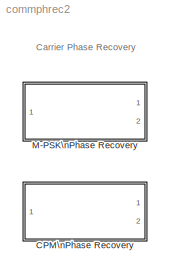
MODEL commphrec2
KIND library
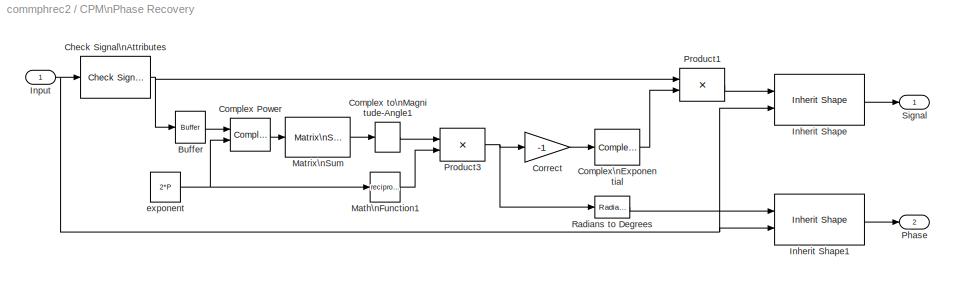
BLOCK [SubSystem] CPM\nPhase Recovery
  EnableExecutionContextPropagation = on
  MaskCallbackString = |
  MaskDescription = Recover the carrier phase using the 2P-Power method.  This non-data-aided, clock-aided feedforward method is suitable for full response CPM signals.\n\nThe parameter P is the denominator of the modulation index (h=K/P) when expressed as a proper fraction. The observation interval parameter must be an integer multiple of the input signal vector length.
  MaskDisplay = disp('CPM\\nPhase Recovery');\nport_label('output',1,'Sig');\nport_label('output',2,'Ph');\n
  MaskEnableString = on,on
  MaskHelp = helpview(commbhelp);
  MaskIconFrame = on
  MaskIconOpaque = on
  MaskIconRotate = none
  MaskIconUnits = autoscale
  MaskInitialization = if ( ~isscalar(P) || (floor(P)~=P) )\n	error('P parameter must be an integer scalar.');\nend\n\nif ( ~isscalar(intPeriod) || (floor(intPeriod)~=intPeriod) )\n	error('The observation interval parameter must be an integer scalar.');\nend\n
  MaskPromptString = P:|Observation interval (symbols):
  MaskSelfModifiable = on
  MaskStyleString = edit,edit
  MaskTabNameString = ,
  MaskToolTipString = on,on
  MaskTunableValueString = on,on
  MaskType = CPM Phase Recovery
  MaskValueString = 2|100
  MaskVarAliasString = ,
  MaskVariables = P=@1;intPeriod=@2;
  MaskVisibilityString = on,on
  MinAlgLoopOccurrences = off
  Ports = [1, 2]
  TreatAsAtomicUnit = off
BLOCK [Reference] CPM\nPhase Recovery/Buffer  REF=dspbuff3/Buffer
  N = intPeriod
  Ports = [1, 1]
  SourceBlock = dspbuff3/Buffer
  SourceType = Buffer
  V = 0
  ic = 0
BLOCK [Reference] CPM\nPhase Recovery/Check Signal\nAttributes  REF=dspsigattribs/Check Signal\nAttributes
  Complexity = Complex
  DatatypeCheckMethod = Ignore
  DatatypeGeneral = Boolean
  Dimensions = 1-D
  DimsCheckMethod = Ignore
  DtypeFixedSpecific = Any fixed-point
  DtypeFloatSpecific = Any floating-point
  DtypeIntSpecific = Any integer
  Frame = Ignore
  Ports = [1, 1]
  SampleMode = Ignore
  ShowPortLabels = on
  SigAttribCheckMethod = Does not match attributes exactly
  SourceBlock = dspsigattribs/Check Signal\nAttributes
  SourceType = Check Signal Attributes
BLOCK [Reference] CPM\nPhase Recovery/Complex Power  REF=commblksprivate/Complex Power
  Ports = [2, 1]
  ShowPortLabels = on
  SourceBlock = commblksprivate/Complex Power
  SourceType = Complex Power
BLOCK [ComplexToMagnitudeAngle] CPM\nPhase Recovery/Complex to\nMagnitude-Angle1
  Output = Angle
  Ports = [1, 1]
BLOCK [Reference] CPM\nPhase Recovery/Complex\nExponential  REF=dspmathops/Complex\nExponential
  Ports = [1, 1]
  ShowPortLabels = on
  SourceBlock = dspmathops/Complex\nExponential
  SourceType = Complex Exponential
BLOCK [Gain] CPM\nPhase Recovery/Correct
  Gain = -1
BLOCK [Reference] CPM\nPhase Recovery/Inherit Shape  REF=commblksprivate/Inherit Shape
  Ports = [2, 1]
  ShowPortLabels = on
  SourceBlock = commblksprivate/Inherit Shape
  SourceType = Inherit Shape
BLOCK [Reference] CPM\nPhase Recovery/Inherit Shape1  REF=commblksprivate/Inherit Shape
  Ports = [2, 1]
  ShowPortLabels = on
  SourceBlock = commblksprivate/Inherit Shape
  SourceType = Inherit Shape
BLOCK [Inport] CPM\nPhase Recovery/Input
  IconDisplay = Port number
  LatchInput = off
BLOCK [Math] CPM\nPhase Recovery/Math\nFunction1
  Operator = reciprocal
  Ports = [1, 1]
BLOCK [Reference] CPM\nPhase Recovery/Matrix\nSum  REF=dspmtrx3/Matrix\nSum
  Dim = Columns
  Ports = [1, 1]
  SourceBlock = dspmtrx3/Matrix\nSum
  SourceType = Matrix Sum
  accumFracLength = 30
  accumMode = Inherit via internal rule
  accumWordLength = 32
  additionalParams = off
  allowOverrides = on
  outputFracLength = 15
  outputMode = Same as input
  outputWordLength = 16
  overflowMode = off
  roundingMode = Floor
BLOCK [Outport] CPM\nPhase Recovery/Phase
  BusOutputAsStruct = off
  IconDisplay = Port number
  Port = 2
BLOCK [Product] CPM\nPhase Recovery/Product1
  InputSameDT = off
  Ports = [2, 1]
  RndMeth = Floor
BLOCK [Product] CPM\nPhase Recovery/Product3
  InputSameDT = off
  Ports = [2, 1]
  RndMeth = Floor
BLOCK [Reference] CPM\nPhase Recovery/Radians to Degrees  REF=simulink_extras/Transformations/Radians\nto Degrees
  Ports = [1, 1]
  ShowPortLabels = on
  SourceBlock = simulink_extras/Transformations/Radians\nto Degrees
  SourceType = RadiansToDegrees
BLOCK [Outport] CPM\nPhase Recovery/Signal
  BusOutputAsStruct = off
  IconDisplay = Port number
BLOCK [Constant] CPM\nPhase Recovery/exponent
  Value = 2*P
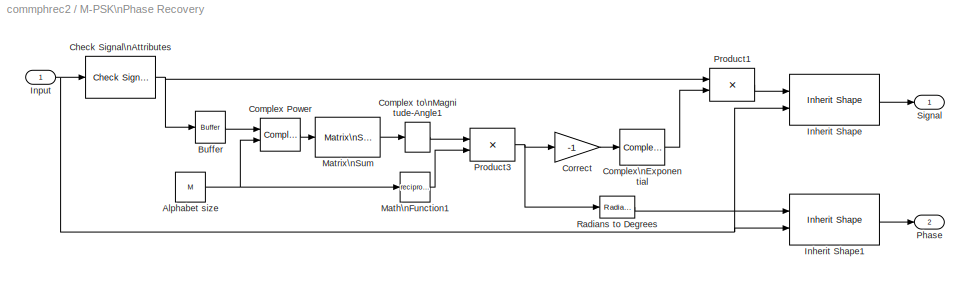
BLOCK [SubSystem] M-PSK\nPhase Recovery
  EnableExecutionContextPropagation = on
  MaskCallbackString = |
  MaskDescription = Recover the carrier phase using the M-Power method.  This non-data-aided, clock-aided feedforward method is suitable for M-ary PSK modulated signals.\n\nThe M-ary number parameter must be an even integer. The observation interval parameter must be an integer multiple of the input signal vector length.
  MaskDisplay = disp('M-PSK\\nPhase Recovery');\nport_label('output',1,'Sig');\nport_label('output',2,'Ph');\n
  MaskEnableString = on,on
  MaskHelp = helpview(commbhelp);
  MaskIconFrame = on
  MaskIconOpaque = on
  MaskIconRotate = none
  MaskIconUnits = autoscale
  MaskInitialization = if ( ~isscalar(M) || (mod(M,2)==1) || (floor(M)~=M) )\n	error('M-ary parameter must be an even integer scalar.');\nend\n\nif ( ~isscalar(intPeriod) || (floor(intPeriod)~=intPeriod) )\n	error('The observation interval parameter must be an integer scalar.');\nend\n
  MaskPromptString = M-ary number:|Observation interval (symbols):
  MaskSelfModifiable = on
  MaskStyleString = edit,edit
  MaskTabNameString = ,
  MaskToolTipString = on,on
  MaskTunableValueString = on,on
  MaskType = M-PSK Phase Recovery
  MaskValueString = 4|100
  MaskVarAliasString = ,
  MaskVariables = M=@1;intPeriod=@2;
  MaskVisibilityString = on,on
  MinAlgLoopOccurrences = off
  Ports = [1, 2]
  TreatAsAtomicUnit = off
BLOCK [Constant] M-PSK\nPhase Recovery/Alphabet size
  Value = M
BLOCK [Reference] M-PSK\nPhase Recovery/Buffer  REF=dspbuff3/Buffer
  N = intPeriod
  Ports = [1, 1]
  SourceBlock = dspbuff3/Buffer
  SourceType = Buffer
  V = 0
  ic = 0
BLOCK [Reference] M-PSK\nPhase Recovery/Check Signal\nAttributes  REF=dspsigattribs/Check Signal\nAttributes
  Complexity = Complex
  DatatypeCheckMethod = Ignore
  DatatypeGeneral = Boolean
  Dimensions = 1-D
  DimsCheckMethod = Ignore
  DtypeFixedSpecific = Any fixed-point
  DtypeFloatSpecific = Any floating-point
  DtypeIntSpecific = Any integer
  Frame = Ignore
  Ports = [1, 1]
  SampleMode = Ignore
  ShowPortLabels = on
  SigAttribCheckMethod = Does not match attributes exactly
  SourceBlock = dspsigattribs/Check Signal\nAttributes
  SourceType = Check Signal Attributes
BLOCK [Reference] M-PSK\nPhase Recovery/Complex Power  REF=commblksprivate/Complex Power
  Ports = [2, 1]
  ShowPortLabels = on
  SourceBlock = commblksprivate/Complex Power
  SourceType = Complex Power
BLOCK [ComplexToMagnitudeAngle] M-PSK\nPhase Recovery/Complex to\nMagnitude-Angle1
  Output = Angle
  Ports = [1, 1]
BLOCK [Reference] M-PSK\nPhase Recovery/Complex\nExponential  REF=dspmathops/Complex\nExponential
  Ports = [1, 1]
  ShowPortLabels = on
  SourceBlock = dspmathops/Complex\nExponential
  SourceType = Complex Exponential
BLOCK [Gain] M-PSK\nPhase Recovery/Correct
  Gain = -1
BLOCK [Reference] M-PSK\nPhase Recovery/Inherit Shape  REF=commblksprivate/Inherit Shape
  Ports = [2, 1]
  ShowPortLabels = on
  SourceBlock = commblksprivate/Inherit Shape
  SourceType = Inherit Shape
BLOCK [Reference] M-PSK\nPhase Recovery/Inherit Shape1  REF=commblksprivate/Inherit Shape
  Ports = [2, 1]
  ShowPortLabels = on
  SourceBlock = commblksprivate/Inherit Shape
  SourceType = Inherit Shape
BLOCK [Inport] M-PSK\nPhase Recovery/Input
  IconDisplay = Port number
  LatchInput = off
BLOCK [Math] M-PSK\nPhase Recovery/Math\nFunction1
  Operator = reciprocal
  Ports = [1, 1]
BLOCK [Reference] M-PSK\nPhase Recovery/Matrix\nSum  REF=dspmtrx3/Matrix\nSum
  Dim = Columns
  Ports = [1, 1]
  SourceBlock = dspmtrx3/Matrix\nSum
  SourceType = Matrix Sum
  accumFracLength = 30
  accumMode = Inherit via internal rule
  accumWordLength = 32
  additionalParams = off
  allowOverrides = on
  outputFracLength = 15
  outputMode = Same as input
  outputWordLength = 16
  overflowMode = off
  roundingMode = Floor
BLOCK [Outport] M-PSK\nPhase Recovery/Phase
  BusOutputAsStruct = off
  IconDisplay = Port number
  Port = 2
BLOCK [Product] M-PSK\nPhase Recovery/Product1
  InputSameDT = off
  Ports = [2, 1]
  RndMeth = Floor
BLOCK [Product] M-PSK\nPhase Recovery/Product3
  InputSameDT = off
  Ports = [2, 1]
  RndMeth = Floor
BLOCK [Reference] M-PSK\nPhase Recovery/Radians to Degrees  REF=simulink_extras/Transformations/Radians\nto Degrees
  Ports = [1, 1]
  ShowPortLabels = on
  SourceBlock = simulink_extras/Transformations/Radians\nto Degrees
  SourceType = RadiansToDegrees
BLOCK [Outport] M-PSK\nPhase Recovery/Signal
  BusOutputAsStruct = off
  IconDisplay = Port number
ANNOTATION (root): Carrier Phase Recovery
LINE CPM\nPhase Recovery/Buffer:1 -> CPM\nPhase Recovery/Complex Power:1
NET CPM\nPhase Recovery/Check Signal\nAttributes:1 -> CPM\nPhase Recovery/Buffer:1, CPM\nPhase Recovery/Product1:1
LINE CPM\nPhase Recovery/Complex Power:1 -> CPM\nPhase Recovery/Matrix\nSum:1
LINE CPM\nPhase Recovery/Complex to\nMagnitude-Angle1:1 -> CPM\nPhase Recovery/Product3:1
LINE CPM\nPhase Recovery/Complex\nExponential:1 -> CPM\nPhase Recovery/Product1:2
LINE CPM\nPhase Recovery/Correct:1 -> CPM\nPhase Recovery/Complex\nExponential:1
LINE CPM\nPhase Recovery/Inherit Shape1:1 -> CPM\nPhase Recovery/Phase:1
LINE CPM\nPhase Recovery/Inherit Shape:1 -> CPM\nPhase Recovery/Signal:1
NET CPM\nPhase Recovery/Input:1 -> CPM\nPhase Recovery/Check Signal\nAttributes:1, CPM\nPhase Recovery/Inherit Shape1:2, CPM\nPhase Recovery/Inherit Shape:2
LINE CPM\nPhase Recovery/Math\nFunction1:1 -> CPM\nPhase Recovery/Product3:2
LINE CPM\nPhase Recovery/Matrix\nSum:1 -> CPM\nPhase Recovery/Complex to\nMagnitude-Angle1:1
LINE CPM\nPhase Recovery/Product1:1 -> CPM\nPhase Recovery/Inherit Shape:1
NET CPM\nPhase Recovery/Product3:1 -> CPM\nPhase Recovery/Correct:1, CPM\nPhase Recovery/Radians to Degrees:1
LINE CPM\nPhase Recovery/Radians to Degrees:1 -> CPM\nPhase Recovery/Inherit Shape1:1
NET CPM\nPhase Recovery/exponent:1 -> CPM\nPhase Recovery/Complex Power:2, CPM\nPhase Recovery/Math\nFunction1:1
NET M-PSK\nPhase Recovery/Alphabet size:1 -> M-PSK\nPhase Recovery/Complex Power:2, M-PSK\nPhase Recovery/Math\nFunction1:1
LINE M-PSK\nPhase Recovery/Buffer:1 -> M-PSK\nPhase Recovery/Complex Power:1
NET M-PSK\nPhase Recovery/Check Signal\nAttributes:1 -> M-PSK\nPhase Recovery/Buffer:1, M-PSK\nPhase Recovery/Product1:1
LINE M-PSK\nPhase Recovery/Complex Power:1 -> M-PSK\nPhase Recovery/Matrix\nSum:1
LINE M-PSK\nPhase Recovery/Complex to\nMagnitude-Angle1:1 -> M-PSK\nPhase Recovery/Product3:1
LINE M-PSK\nPhase Recovery/Complex\nExponential:1 -> M-PSK\nPhase Recovery/Product1:2
LINE M-PSK\nPhase Recovery/Correct:1 -> M-PSK\nPhase Recovery/Complex\nExponential:1
LINE M-PSK\nPhase Recovery/Inherit Shape1:1 -> M-PSK\nPhase Recovery/Phase:1
LINE M-PSK\nPhase Recovery/Inherit Shape:1 -> M-PSK\nPhase Recovery/Signal:1
NET M-PSK\nPhase Recovery/Input:1 -> M-PSK\nPhase Recovery/Check Signal\nAttributes:1, M-PSK\nPhase Recovery/Inherit Shape1:2, M-PSK\nPhase Recovery/Inherit Shape:2
LINE M-PSK\nPhase Recovery/Math\nFunction1:1 -> M-PSK\nPhase Recovery/Product3:2
LINE M-PSK\nPhase Recovery/Matrix\nSum:1 -> M-PSK\nPhase Recovery/Complex to\nMagnitude-Angle1:1
LINE M-PSK\nPhase Recovery/Product1:1 -> M-PSK\nPhase Recovery/Inherit Shape:1
NET M-PSK\nPhase Recovery/Product3:1 -> M-PSK\nPhase Recovery/Correct:1, M-PSK\nPhase Recovery/Radians to Degrees:1
LINE M-PSK\nPhase Recovery/Radians to Degrees:1 -> M-PSK\nPhase Recovery/Inherit Shape1:1
note: NET lines group one-source signal fan-out (src -> all destinations, sorted); 1:1 wires keep LINE
